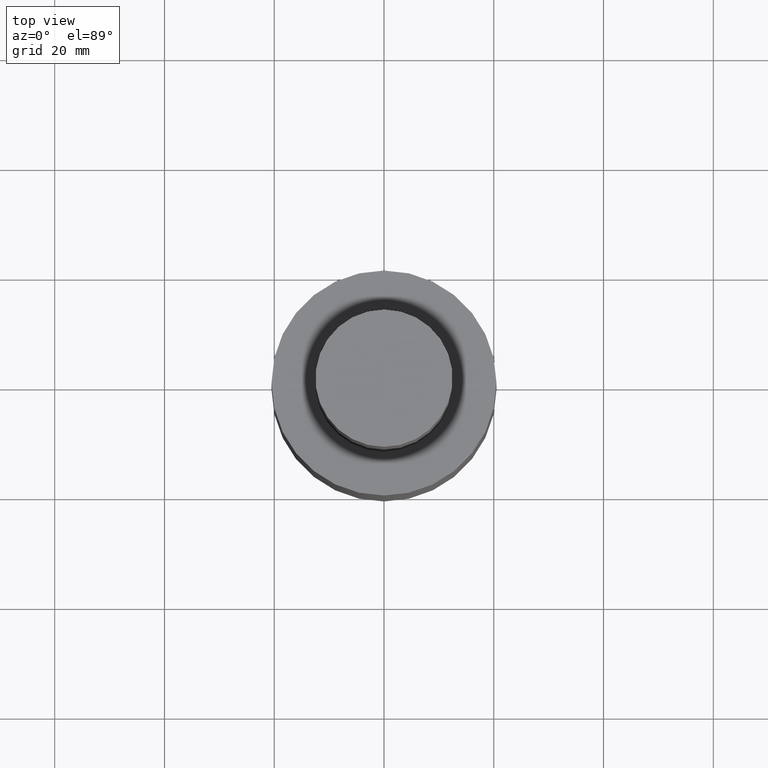
[diagram: clean part render]
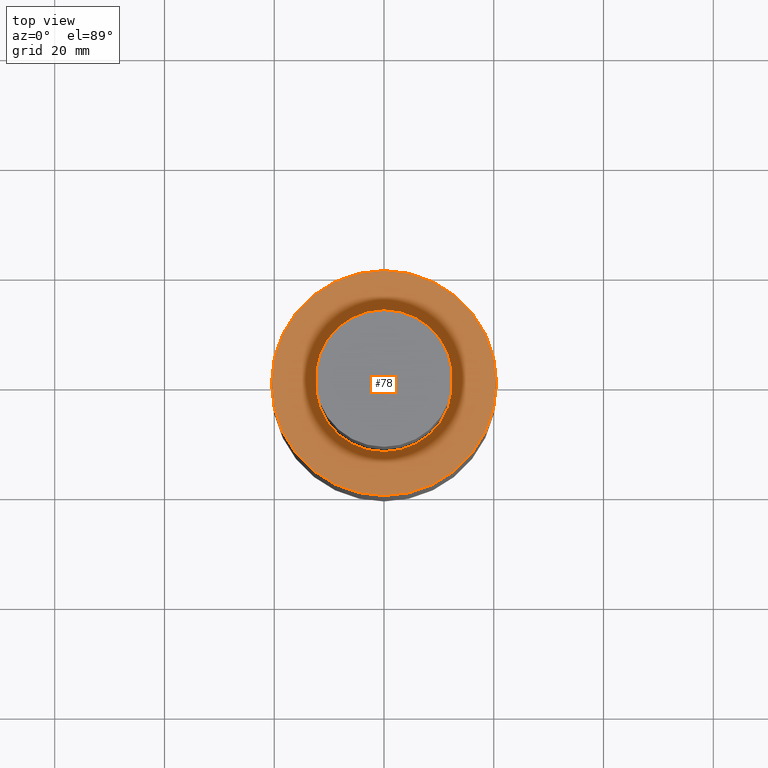
[diagram: same view with one face highlighted and labeled with its STEP entity id]
A machine part, top view. The second image highlights one B-rep face of the part: STEP entity #78.
In plain terms, the highlighted planar face has unit normal (-0, -0, 1).
Its self-contained STEP definition (entity closure, byte-faithful):
#78=ADVANCED_FACE('',(#90,#91),#92,.T.);
#90=FACE_BOUND('',#106,.T.);
#91=FACE_OUTER_BOUND('',#107,.T.);
#92=PLANE('',#108);
#106=EDGE_LOOP('',(#128));
#107=EDGE_LOOP('',(#129));
#108=AXIS2_PLACEMENT_3D('',#130,#131,#132);
#128=ORIENTED_EDGE('',*,*,#145,.F.);
#129=ORIENTED_EDGE('',*,*,#144,.T.);
#130=CARTESIAN_POINT('',(-2.03378202127292E-031,16.5,2.02066721859313E-015));
#131=DIRECTION('',(-6.12323399573677E-017,-1.22464679914735E-016,1.0));
#132=DIRECTION('',(-1.23259516440783E-032,1.0,1.22464679914735E-016));
#144=EDGE_CURVE('',#151,#151,#152,.T.);
#145=EDGE_CURVE('',#153,#153,#154,.T.);
#151=VERTEX_POINT('',#161);
#152=CIRCLE('',#162,20.5);
#153=VERTEX_POINT('',#163);
#154=CIRCLE('',#164,12.5);
#161=CARTESIAN_POINT('',(-2.52682008703605E-031,20.5,2.51052593825207E-015));
#162=AXIS2_PLACEMENT_3D('',#173,#174,#175);
#163=CARTESIAN_POINT('',(-1.54074395550979E-031,12.5,1.53080849893419E-015));
#164=AXIS2_PLACEMENT_3D('',#176,#177,#178);
#173=CARTESIAN_POINT('',(0.0,0.0,0.0));
#174=DIRECTION('',(-6.12323399573677E-017,-1.22464679914735E-016,1.0));
#175=DIRECTION('',(-1.23259516440783E-032,1.0,1.22464679914735E-016));
#176=CARTESIAN_POINT('',(0.0,0.0,0.0));
#177=DIRECTION('',(-6.12323399573677E-017,-1.22464679914735E-016,1.0));
#178=DIRECTION('',(-1.23259516440783E-032,1.0,1.22464679914735E-016));